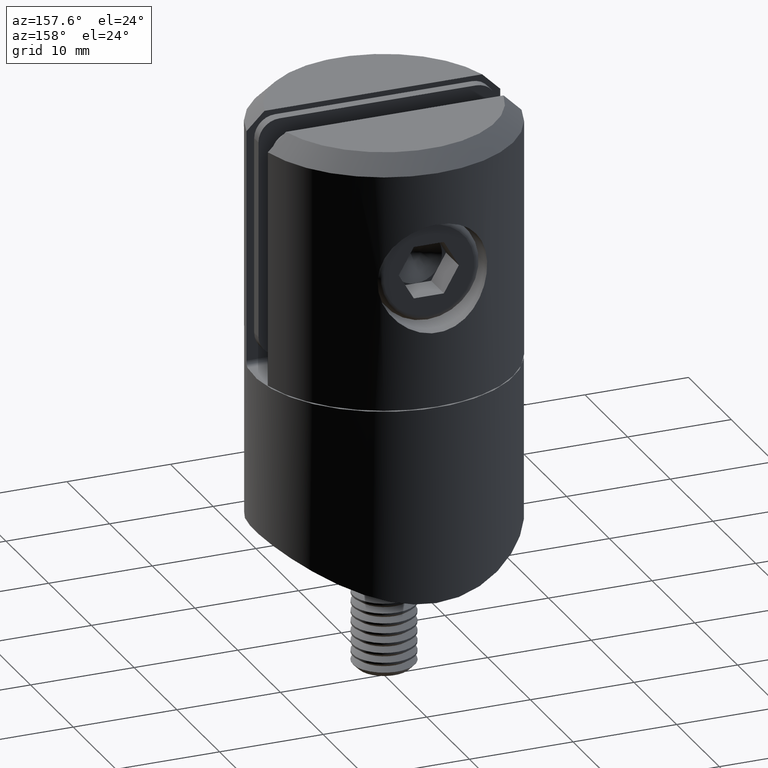
[diagram: clean part render]
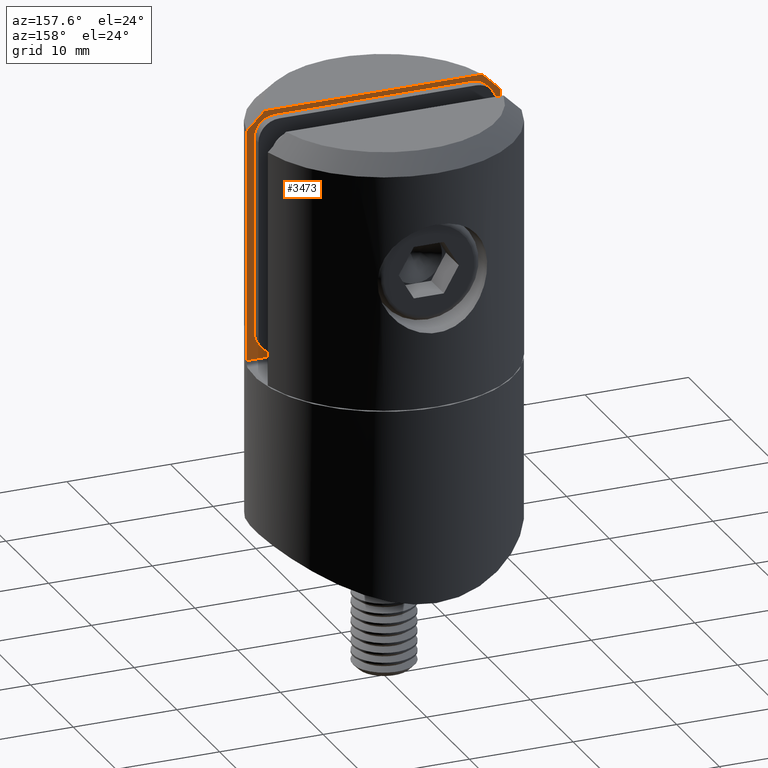
[diagram: same view with one face highlighted and labeled with its STEP entity id]
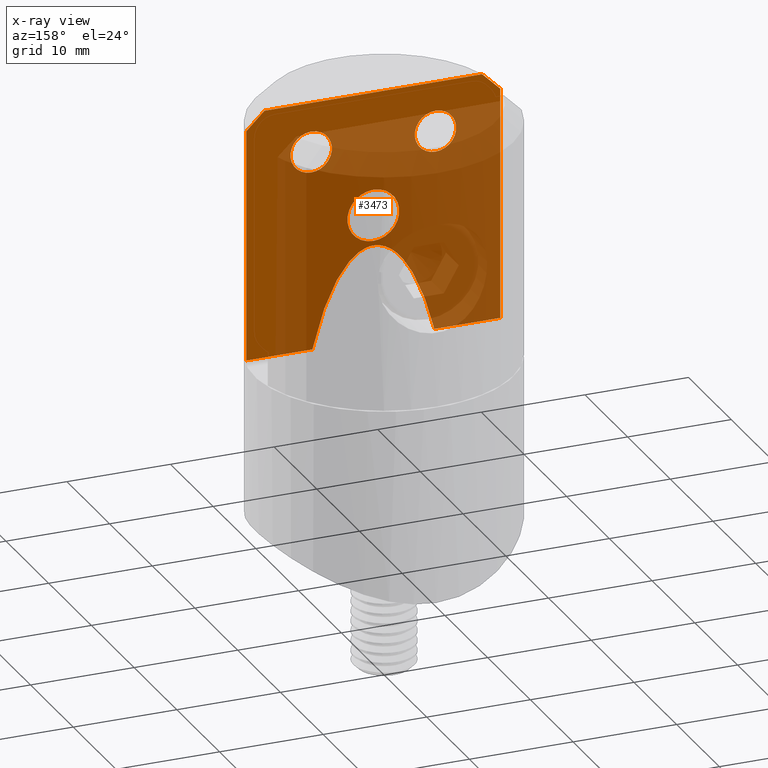
[diagram: x-ray of the same camera — body ghosted, the highlighted face saturated]
A machine part, auxiliary view. The second image highlights one B-rep face of the part: STEP entity #3473.
The next image is the same camera in x-ray: the body ghosted, the highlighted face saturated — about 72% of this face is hidden behind the body in this view.
In plain terms, the highlighted planar face has unit normal (0, -1, 0).
Its self-contained STEP definition (entity closure, byte-faithful):
#358 = VECTOR ( 'NONE', #11965, 1000.000000000000000 ) ;
#416 = DIRECTION ( 'NONE',  ( 0.000000000000000000, -0.000000000000000000, -1.000000000000000000 ) ) ;
#443 = ORIENTED_EDGE ( 'NONE', *, *, #9033, .F. ) ;
#477 = EDGE_CURVE ( 'NONE', #8567, #14390, #3086, .T. ) ;
#490 = CARTESIAN_POINT ( 'NONE',  ( 12.24744871391589207, -2.500000000000003997, 39.59999999999999432 ) ) ;
#715 = DIRECTION ( 'NONE',  ( 0.000000000000000000, 0.000000000000000000, 1.000000000000000000 ) ) ;
#855 = VERTEX_POINT ( 'NONE', #7244 ) ;
#974 = CARTESIAN_POINT ( 'NONE',  ( -12.24744871391589207, -2.500000000000003997, 37.89999999999999858 ) ) ;
#1043 = CARTESIAN_POINT ( 'NONE',  ( 12.24744871391589207, -2.500000000000003997, 37.89999999999999858 ) ) ;
#1223 = VERTEX_POINT ( 'NONE', #1043 ) ;
#1654 = VERTEX_POINT ( 'NONE', #5999 ) ;
#1952 = FACE_BOUND ( 'NONE', #15532, .T. ) ;
#2014 = VERTEX_POINT ( 'NONE', #19325 ) ;
#2136 = CIRCLE ( 'NONE', #18329, 2.000000000000001776 ) ;
#2354 =( BOUNDED_CURVE ( )  B_SPLINE_CURVE ( 3, ( #9953, #19713, #4763, #16478 ),
 .UNSPECIFIED., .F., .T. ) 
 B_SPLINE_CURVE_WITH_KNOTS ( ( 4, 4 ),
 ( 5.345268941596490464, 7.221101672762682000 ),
 .UNSPECIFIED. ) 
 CURVE ( )  GEOMETRIC_REPRESENTATION_ITEM ( )  RATIONAL_B_SPLINE_CURVE ( ( 1.000000000000000000, 0.7276462662491731681, 0.7276462662491731681, 1.000000000000000000 ) ) 
 REPRESENTATION_ITEM ( '' )  );
#2538 = CARTESIAN_POINT ( 'NONE',  ( -10.50666455160723167, -2.500000000000003997, 39.59999999999999432 ) ) ;
#2610 = CARTESIAN_POINT ( 'NONE',  ( -11.08800938267508762, -2.500000000000003997, 39.03444489547771212 ) ) ;
#2734 = EDGE_CURVE ( 'NONE', #2014, #2014, #16792, .T. ) ;
#2912 = VERTEX_POINT ( 'NONE', #6962 ) ;
#3086 = B_SPLINE_CURVE_WITH_KNOTS ( 'NONE', 3,
 ( #974, #9589, #2610, #2538 ),
 .UNSPECIFIED., .F., .F.,
 ( 4, 4 ),
 ( 1.734723475976807094E-18, 0.002433172722957552270 ),
 .UNSPECIFIED. ) ;
#3457 = CARTESIAN_POINT ( 'NONE',  ( 5.886190353226847805, -2.500000000000003997, 15.50000000000000000 ) ) ;
#3473 = ADVANCED_FACE ( 'NONE', ( #15422, #1952, #19379, #14905 ), #14008, .F. ) ;
#3534 = EDGE_CURVE ( 'NONE', #1223, #855, #10977, .T. ) ;
#3623 = EDGE_CURVE ( 'NONE', #8567, #1654, #16475, .T. ) ;
#3655 = EDGE_CURVE ( 'NONE', #21849, #1654, #16990, .T. ) ;
#3860 = CARTESIAN_POINT ( 'NONE',  ( -5.886190353226848693, -2.500000000000003997, 15.50000000000000000 ) ) ;
#3941 = ORIENTED_EDGE ( 'NONE', *, *, #477, .T. ) ;
#4037 = DIRECTION ( 'NONE',  ( 0.000000000000000000, 0.000000000000000000, 1.000000000000000000 ) ) ;
#4763 = CARTESIAN_POINT ( 'NONE',  ( -2.696452303932709071, -2.500000000000003553, 28.85648753586291804 ) ) ;
#4847 = CARTESIAN_POINT ( 'NONE',  ( -6.000000000000000000, -2.500000000000003997, 34.79999999999999716 ) ) ;
#5021 = EDGE_LOOP ( 'NONE', ( #14883, #12465, #12964, #3941, #443, #7857, #9232, #21549 ) ) ;
#5261 = B_SPLINE_CURVE_WITH_KNOTS ( 'NONE', 3,
 ( #5610, #17332, #15773, #15544 ),
 .UNSPECIFIED., .F., .F.,
 ( 4, 4 ),
 ( 0.000000000000000000, 0.002433172722957547499 ),
 .UNSPECIFIED. ) ;
#5610 = CARTESIAN_POINT ( 'NONE',  ( 10.50666455160723878, -2.500000000000003997, 39.59999999999999432 ) ) ;
#5754 = AXIS2_PLACEMENT_3D ( 'NONE', #4847, #16492, #6393 ) ;
#5906 = DIRECTION ( 'NONE',  ( -0.000000000000000000, -0.000000000000000000, -1.000000000000000000 ) ) ;
#5915 = VECTOR ( 'NONE', #19162, 1000.000000000000000 ) ;
#5999 = CARTESIAN_POINT ( 'NONE',  ( -12.24744871391589207, -2.500000000000003997, 15.50000000000000000 ) ) ;
#6393 = DIRECTION ( 'NONE',  ( 0.000000000000000000, 0.000000000000000000, 1.000000000000000000 ) ) ;
#6521 = EDGE_CURVE ( 'NONE', #12368, #12368, #10041, .T. ) ;
#6962 = CARTESIAN_POINT ( 'NONE',  ( 10.50666455160723878, -2.500000000000003997, 39.59999999999999432 ) ) ;
#7215 = VECTOR ( 'NONE', #17617, 1000.000000000000000 ) ;
#7244 = CARTESIAN_POINT ( 'NONE',  ( 12.24744871391589207, -2.500000000000003997, 15.50000000000000000 ) ) ;
#7373 = CARTESIAN_POINT ( 'NONE',  ( 12.24744871391589207, -2.500000000000003997, 39.59999999999999432 ) ) ;
#7467 = DIRECTION ( 'NONE',  ( 0.000000000000000000, 1.000000000000000000, 0.000000000000000000 ) ) ;
#7760 = AXIS2_PLACEMENT_3D ( 'NONE', #10843, #12312, #4037 ) ;
#7857 = ORIENTED_EDGE ( 'NONE', *, *, #18497, .T. ) ;
#8259 = VECTOR ( 'NONE', #11322, 1000.000000000000000 ) ;
#8567 = VERTEX_POINT ( 'NONE', #13099 ) ;
#9020 = ORIENTED_EDGE ( 'NONE', *, *, #6521, .F. ) ;
#9033 = EDGE_CURVE ( 'NONE', #2912, #14390, #18530, .T. ) ;
#9165 = CARTESIAN_POINT ( 'NONE',  ( -12.24744871391588497, -2.500000000000003997, 15.50000000000000000 ) ) ;
#9232 = ORIENTED_EDGE ( 'NONE', *, *, #3534, .T. ) ;
#9589 = CARTESIAN_POINT ( 'NONE',  ( -11.66812187511647636, -2.500000000000003109, 38.46762205974326321 ) ) ;
#9648 = VECTOR ( 'NONE', #5906, 1000.000000000000000 ) ;
#9757 = EDGE_CURVE ( 'NONE', #20767, #20767, #2136, .T. ) ;
#9941 = LINE ( 'NONE', #16955, #358 ) ;
#9953 = CARTESIAN_POINT ( 'NONE',  ( 5.886190353226847805, -2.500000000000003997, 15.50000000000000000 ) ) ;
#10033 = EDGE_CURVE ( 'NONE', #12915, #21849, #2354, .T. ) ;
#10041 = CIRCLE ( 'NONE', #7760, 2.499999999999998668 ) ;
#10515 = DIRECTION ( 'NONE',  ( 0.000000000000000000, -1.000000000000000000, 0.000000000000000000 ) ) ;
#10843 = CARTESIAN_POINT ( 'NONE',  ( 0.000000000000000000, -2.500000000000003997, 27.59999999999999432 ) ) ;
#10977 = LINE ( 'NONE', #7373, #5915 ) ;
#11101 = CARTESIAN_POINT ( 'NONE',  ( 12.24744871391589207, -2.500000000000003997, 39.59999999999999432 ) ) ;
#11119 = CARTESIAN_POINT ( 'NONE',  ( -12.24744871391589207, -2.500000000000003997, 39.59999999999999432 ) ) ;
#11322 = DIRECTION ( 'NONE',  ( -1.000000000000000000, 0.000000000000000000, 0.000000000000000000 ) ) ;
#11965 = DIRECTION ( 'NONE',  ( -1.000000000000000000, 0.000000000000000000, 0.000000000000000000 ) ) ;
#12312 = DIRECTION ( 'NONE',  ( -0.000000000000000000, 1.000000000000000000, -0.000000000000000000 ) ) ;
#12368 = VERTEX_POINT ( 'NONE', #15860 ) ;
#12465 = ORIENTED_EDGE ( 'NONE', *, *, #3655, .T. ) ;
#12915 = VERTEX_POINT ( 'NONE', #3457 ) ;
#12964 = ORIENTED_EDGE ( 'NONE', *, *, #3623, .F. ) ;
#13094 = EDGE_CURVE ( 'NONE', #855, #12915, #9941, .T. ) ;
#13099 = CARTESIAN_POINT ( 'NONE',  ( -12.24744871391589207, -2.500000000000003997, 37.89999999999999858 ) ) ;
#14008 = PLANE ( 'NONE',  #20862 ) ;
#14354 = ORIENTED_EDGE ( 'NONE', *, *, #9757, .F. ) ;
#14390 = VERTEX_POINT ( 'NONE', #21320 ) ;
#14883 = ORIENTED_EDGE ( 'NONE', *, *, #10033, .T. ) ;
#14905 = FACE_BOUND ( 'NONE', #15928, .T. ) ;
#15422 = FACE_BOUND ( 'NONE', #16158, .T. ) ;
#15429 = ORIENTED_EDGE ( 'NONE', *, *, #2734, .F. ) ;
#15532 = EDGE_LOOP ( 'NONE', ( #15429 ) ) ;
#15544 = CARTESIAN_POINT ( 'NONE',  ( 12.24744871391589207, -2.500000000000003997, 37.89999999999999858 ) ) ;
#15773 = CARTESIAN_POINT ( 'NONE',  ( 11.66812187511647636, -2.500000000000003997, 38.46762205974326321 ) ) ;
#15860 = CARTESIAN_POINT ( 'NONE',  ( 0.000000000000000000, -2.500000000000003997, 30.09999999999999432 ) ) ;
#15928 = EDGE_LOOP ( 'NONE', ( #9020 ) ) ;
#16158 = EDGE_LOOP ( 'NONE', ( #14354 ) ) ;
#16475 = LINE ( 'NONE', #11119, #9648 ) ;
#16478 = CARTESIAN_POINT ( 'NONE',  ( -5.886190353226848693, -2.500000000000003997, 15.50000000000000000 ) ) ;
#16492 = DIRECTION ( 'NONE',  ( 0.000000000000000000, 1.000000000000000000, 0.000000000000000000 ) ) ;
#16792 = CIRCLE ( 'NONE', #5754, 2.000000000000001776 ) ;
#16955 = CARTESIAN_POINT ( 'NONE',  ( 6.002203970564250035, -2.500000000000003997, 15.50000000000000000 ) ) ;
#16990 = LINE ( 'NONE', #9165, #7215 ) ;
#17332 = CARTESIAN_POINT ( 'NONE',  ( 11.08800938267508585, -2.500000000000003997, 39.03444489547771212 ) ) ;
#17617 = DIRECTION ( 'NONE',  ( -1.000000000000000000, 0.000000000000000000, 0.000000000000000000 ) ) ;
#17694 = CARTESIAN_POINT ( 'NONE',  ( 6.000000000000000000, -2.500000000000003997, 36.79999999999999716 ) ) ;
#18329 = AXIS2_PLACEMENT_3D ( 'NONE', #19251, #7467, #715 ) ;
#18497 = EDGE_CURVE ( 'NONE', #2912, #1223, #5261, .T. ) ;
#18530 = LINE ( 'NONE', #11101, #8259 ) ;
#19162 = DIRECTION ( 'NONE',  ( -0.000000000000000000, -0.000000000000000000, -1.000000000000000000 ) ) ;
#19251 = CARTESIAN_POINT ( 'NONE',  ( 6.000000000000000000, -2.500000000000003997, 34.79999999999999716 ) ) ;
#19325 = CARTESIAN_POINT ( 'NONE',  ( -6.000000000000000000, -2.500000000000003997, 36.79999999999999716 ) ) ;
#19379 = FACE_OUTER_BOUND ( 'NONE', #5021, .T. ) ;
#19713 = CARTESIAN_POINT ( 'NONE',  ( 2.696452303932710848, -2.500000000000003553, 28.85648753586292514 ) ) ;
#20767 = VERTEX_POINT ( 'NONE', #17694 ) ;
#20862 = AXIS2_PLACEMENT_3D ( 'NONE', #490, #10515, #416 ) ;
#21320 = CARTESIAN_POINT ( 'NONE',  ( -10.50666455160723167, -2.500000000000003997, 39.59999999999999432 ) ) ;
#21549 = ORIENTED_EDGE ( 'NONE', *, *, #13094, .T. ) ;
#21849 = VERTEX_POINT ( 'NONE', #3860 ) ;